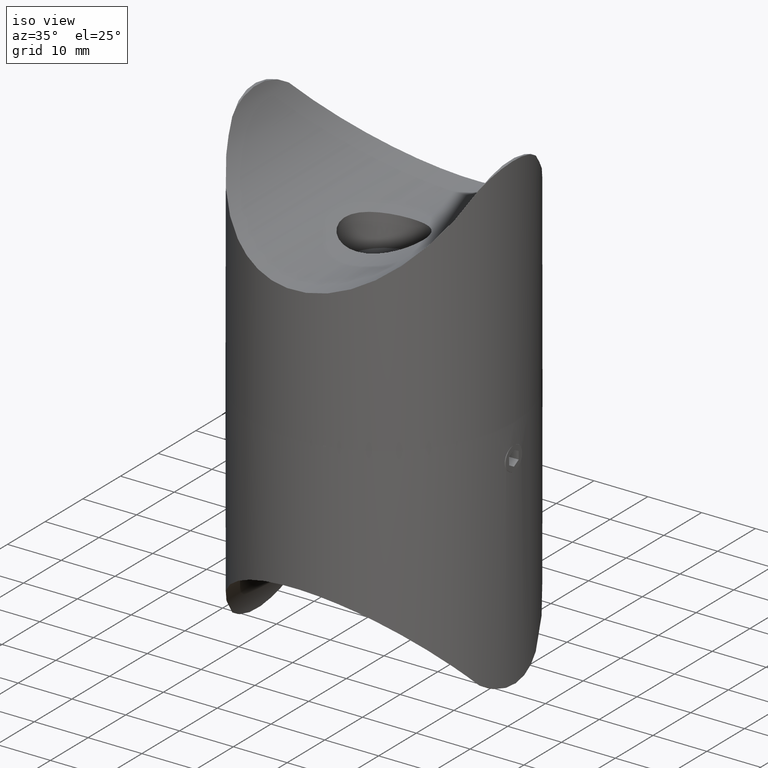
[diagram: clean part render]
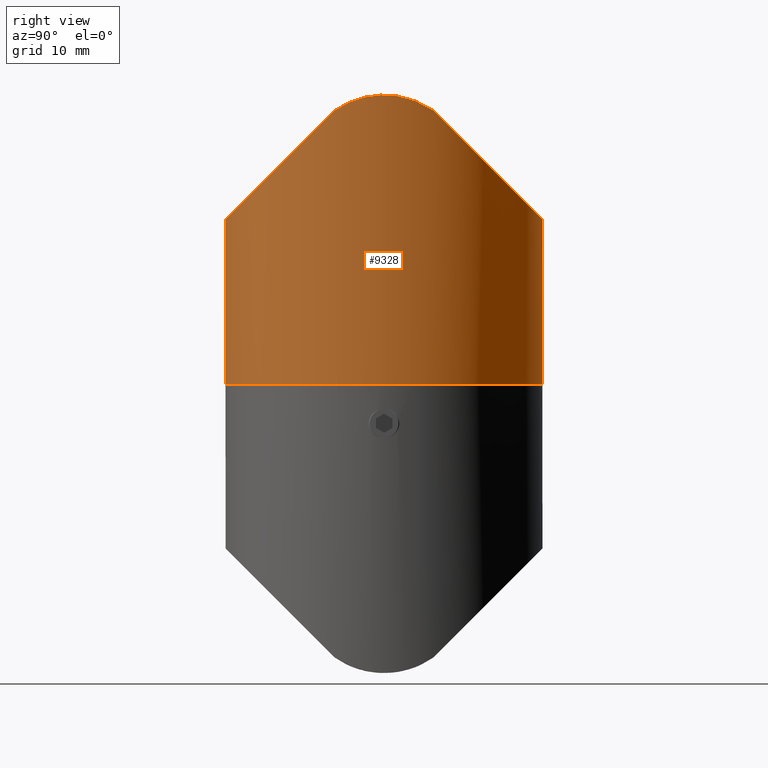
[diagram: tour spotlight — one face highlighted and labeled with its STEP entity id]
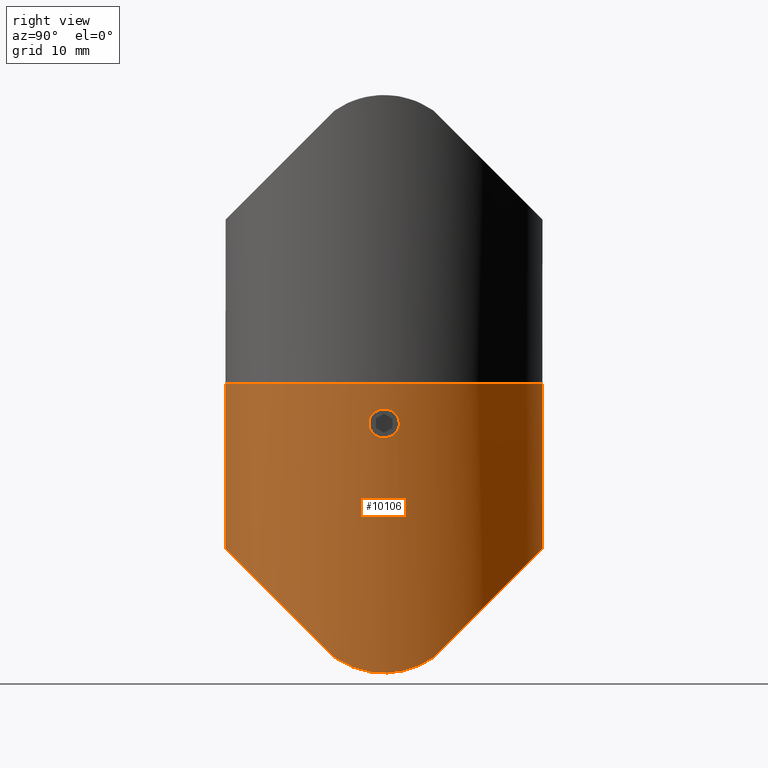
[diagram: tour spotlight — one face highlighted and labeled with its STEP entity id]
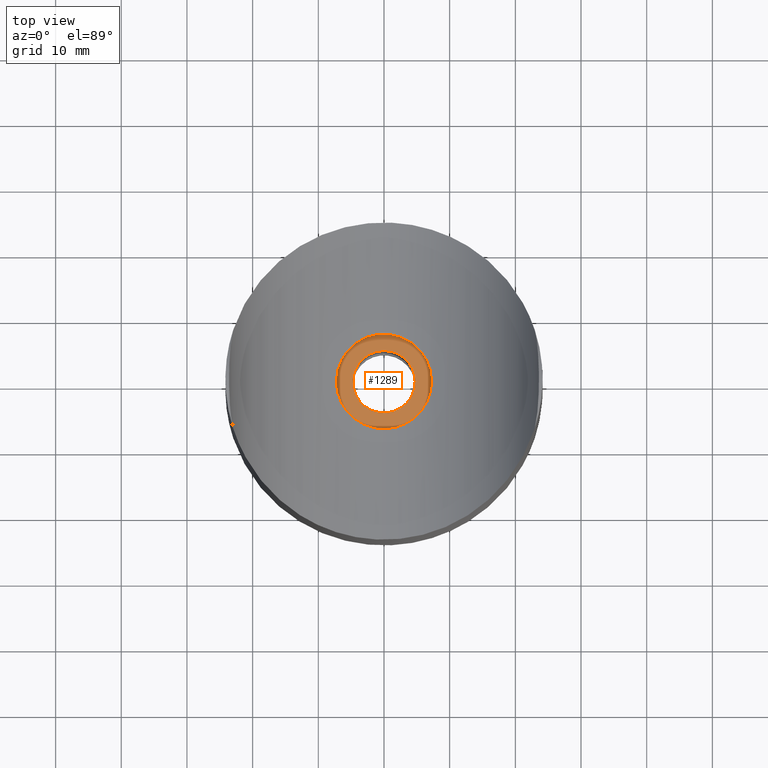
[diagram: tour spotlight — one face highlighted and labeled with its STEP entity id]
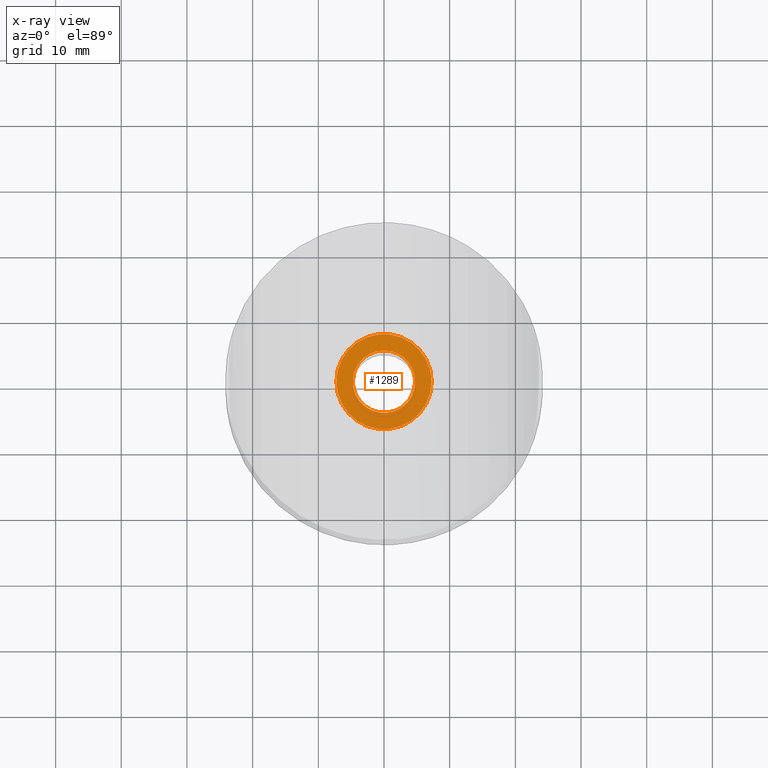
[diagram: x-ray of the same camera — body ghosted, this tour face saturated]
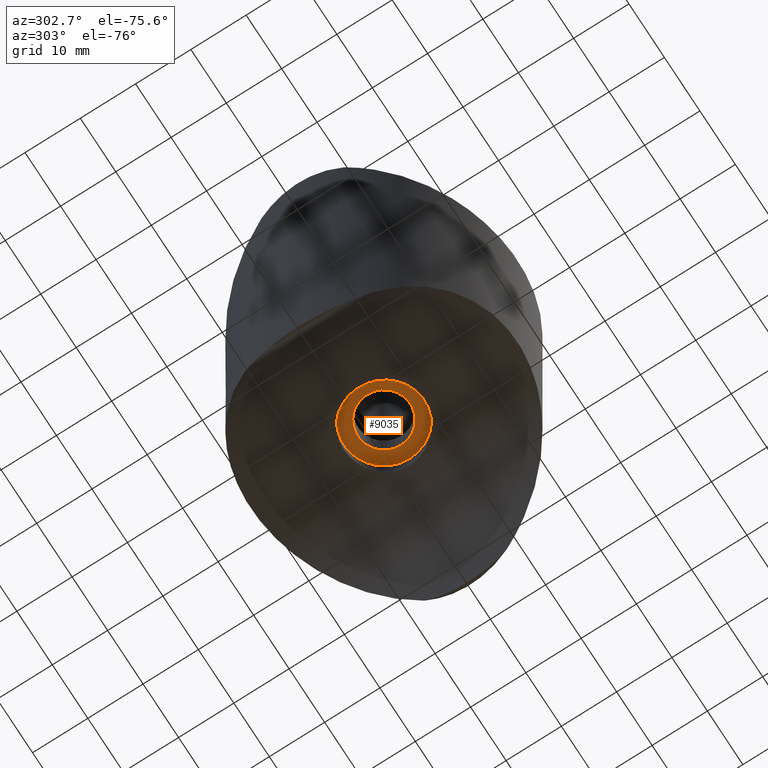
[diagram: tour spotlight — one face highlighted and labeled with its STEP entity id]
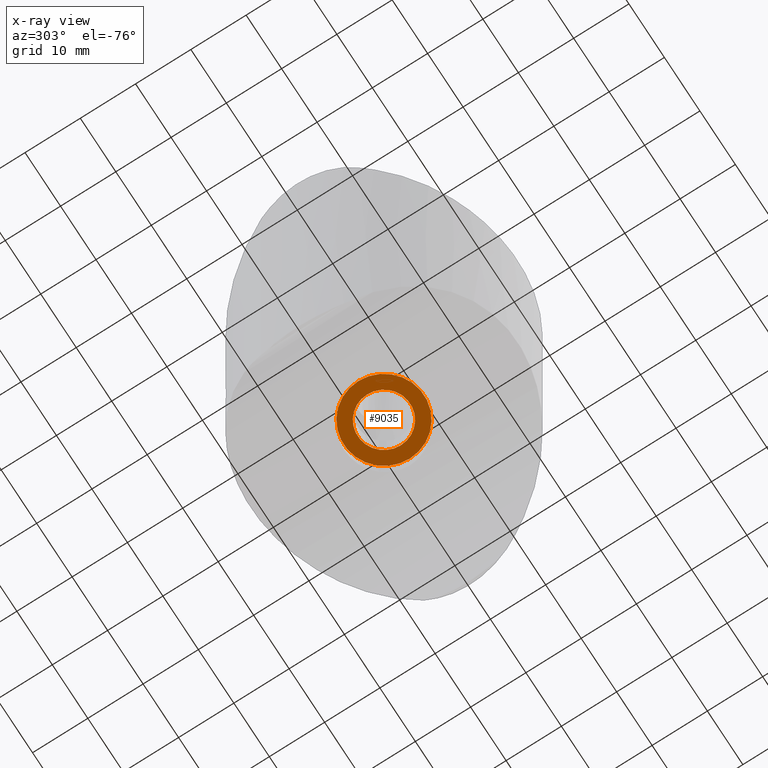
[diagram: x-ray of the same camera — body ghosted, this tour face saturated]
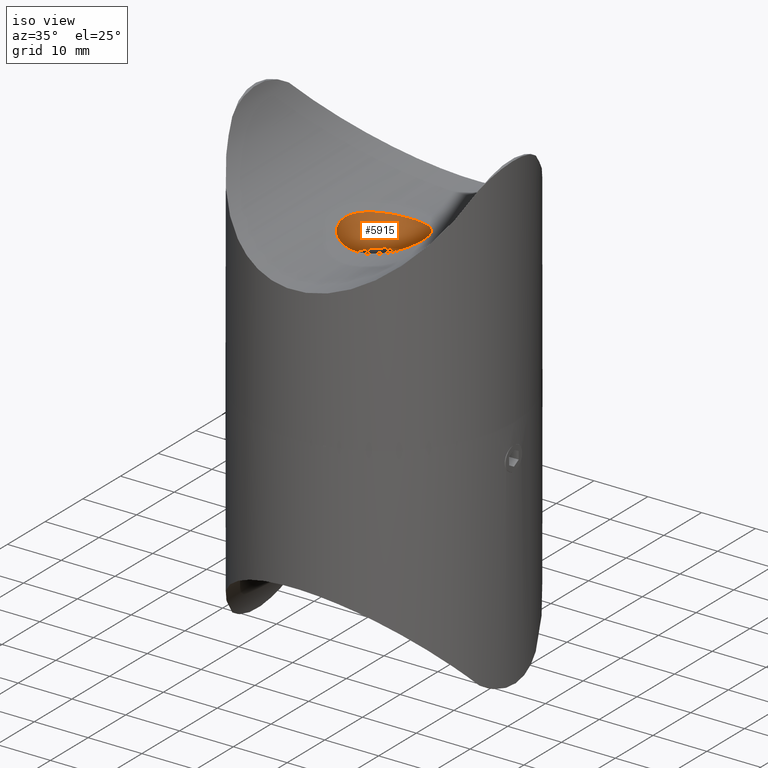
[diagram: tour spotlight — one face highlighted and labeled with its STEP entity id]
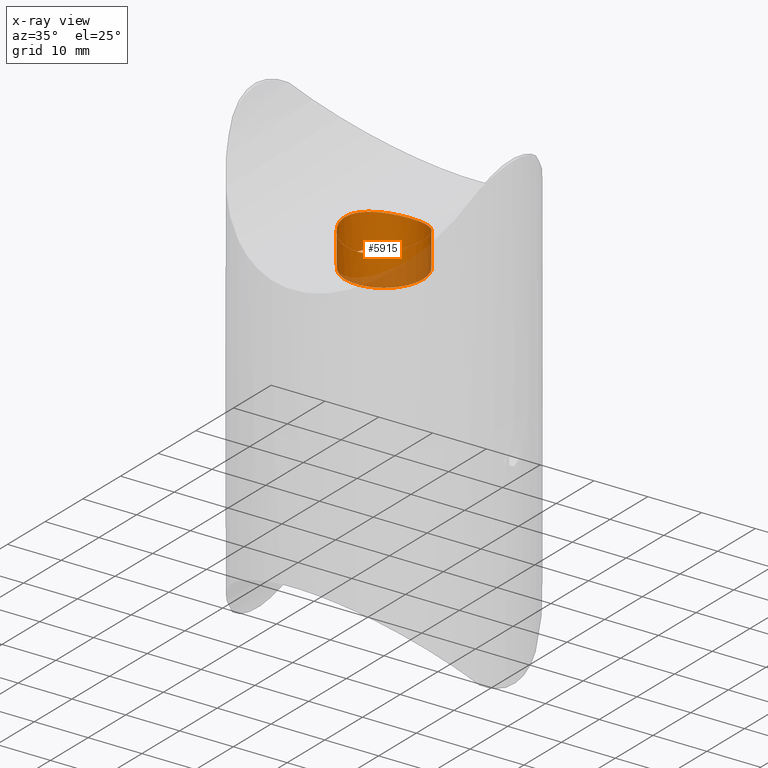
[diagram: x-ray of the same camera — body ghosted, this tour face saturated]
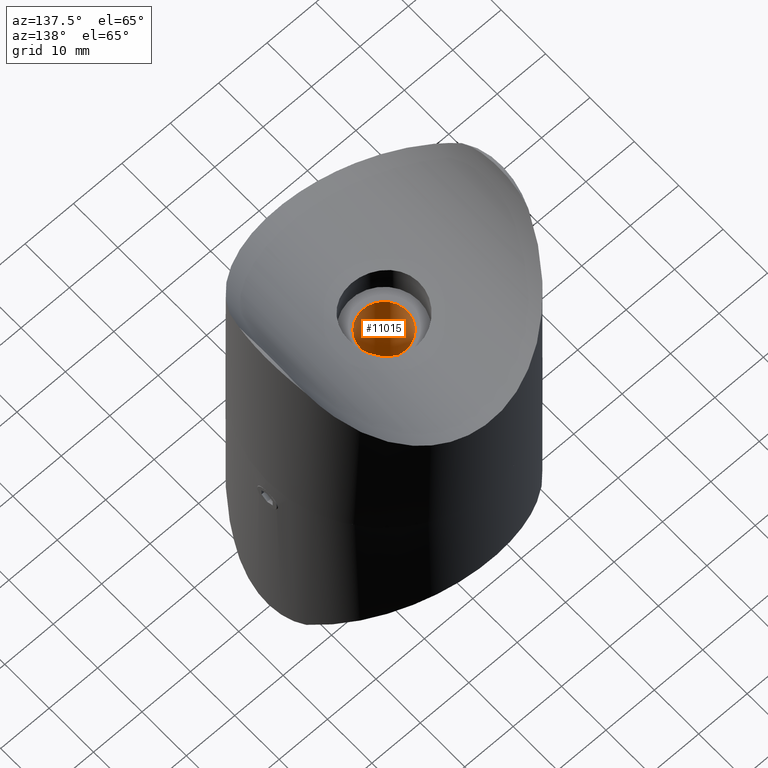
[diagram: tour spotlight — one face highlighted and labeled with its STEP entity id]
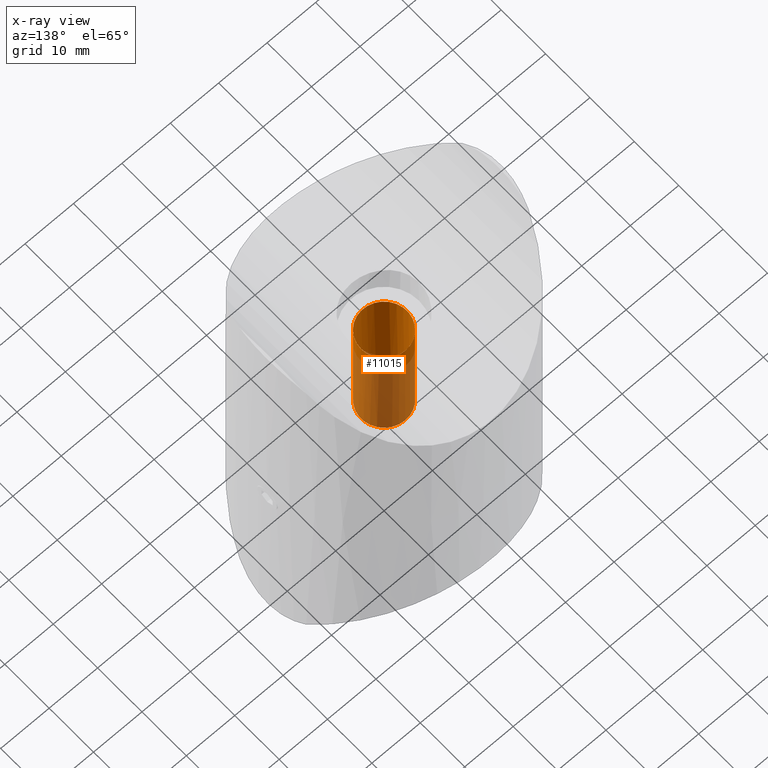
[diagram: x-ray of the same camera — body ghosted, this tour face saturated]
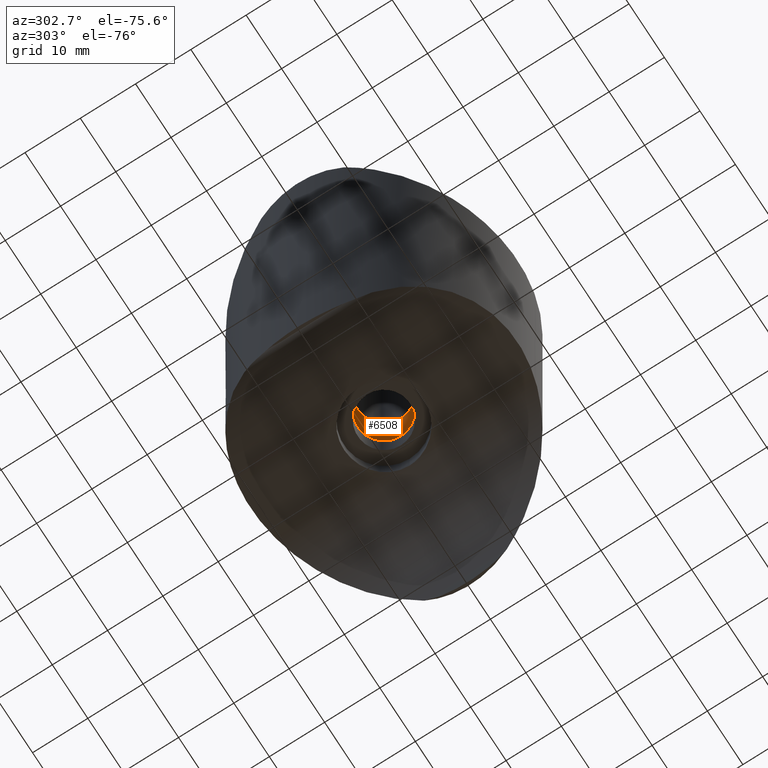
[diagram: tour spotlight — one face highlighted and labeled with its STEP entity id]
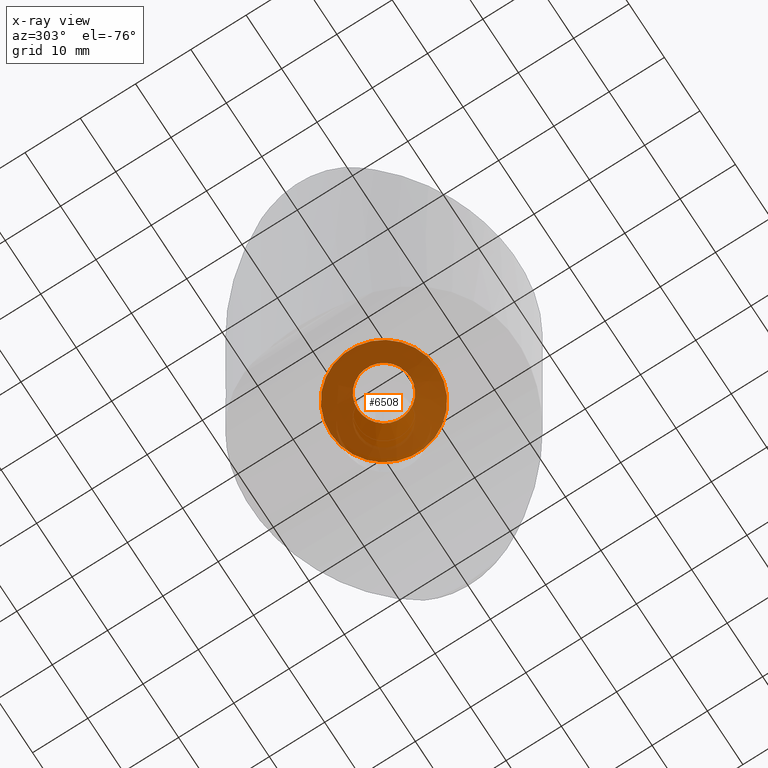
[diagram: x-ray of the same camera — body ghosted, this tour face saturated]
A machine part: a face-by-face anatomy tour. The part has 267 B-rep faces; the first image is the clean iso view, then the 7 largest visible faces are spotlighted one at a time (largest first), each with its STEP entity span.

Face 1 — right view, entity #9328. In plain terms, the highlighted cylindrical surface (bore or boss wall) has radius 24.15 mm, axis along (-0, -0, -1).
Definition (entity closure, byte-faithful):
#129 = CARTESIAN_POINT ( 'NONE',  ( 22.95588159927646643, 7.499999999999992895, 41.65000000000000568 ) ) ;
#328 = CARTESIAN_POINT ( 'NONE',  ( -23.60843002366777199, -5.248416552753503161, 42.98106121229555043 ) ) ;
#364 = CARTESIAN_POINT ( 'NONE',  ( -23.87483628833688698, -3.649626862566187846, 43.48756875683036327 ) ) ;
#449 = ORIENTED_EDGE ( 'NONE', *, *, #10274, .T. ) ;
#695 = CARTESIAN_POINT ( 'NONE',  ( 23.29549404017125269, -6.396219860817579317, 42.35740354395536400 ) ) ;
#720 = EDGE_CURVE ( 'NONE', #7595, #7595, #13955, .T. ) ;
#963 = CARTESIAN_POINT ( 'NONE',  ( 14.16052466468780224, -34.42068965517238865, 14.72931034482759927 ) ) ;
#1250 = VERTEX_POINT ( 'NONE', #13001 ) ;
#1365 = CARTESIAN_POINT ( 'NONE',  ( -22.95588159927646643, -7.500000000000001776, 41.64999999999999858 ) ) ;
#1406 = CARTESIAN_POINT ( 'NONE',  ( -24.01115486709185731, 2.669773711892143186, 43.74338684549248768 ) ) ;
#1558 = CARTESIAN_POINT ( 'NONE',  ( -14.16052466468779691, 34.42068965517240287, 14.72931034482758150 ) ) ;
#1792 = CARTESIAN_POINT ( 'NONE',  ( 22.95588159927646643, 7.499999999999992895, 41.65000000000000568 ) ) ;
#1985 = ORIENTED_EDGE ( 'NONE', *, *, #8057, .T. ) ;
#2208 = DIRECTION ( 'NONE',  ( -1.000000000000000000, 0.000000000000000000, 0.000000000000000000 ) ) ;
#2612 = CARTESIAN_POINT ( 'NONE',  ( -23.13216092701416926, 6.960447016540411980, 42.02492962726234538 ) ) ;
#2810 = CARTESIAN_POINT ( 'NONE',  ( 24.14972682618041233, 0.6872290583770844785, 43.99949805171757333 ) ) ;
#2946 = CARTESIAN_POINT ( 'NONE',  ( 24.12100697538241079, 1.355778284449713045, 43.94693398766127501 ) ) ;
#2979 = B_SPLINE_CURVE_WITH_KNOTS ( 'NONE', 3,
 ( #1365, #8102, #328, #364, #4799, #4700, #4894, #7011, #9137, #10273, #3626, #12369, #12458, #1406, #13487, #9091, #11319, #5854, #11414, #5901, #2612, #3737 ),
 .UNSPECIFIED., .F., .F.,
 ( 4, 2, 2, 2, 2, 2, 2, 2, 2, 2, 4 ),
 ( 1.589900327696125378E-17, 0.004028460611161912945, 0.005035575763952385327, 0.006042690916742857708, 0.008056921222323803339, 0.009064036375114277455, 0.01007115152790474810, 0.01208538183348569287, 0.01309249698627617045, 0.01409961213906664630, 0.01611384244464758933 ),
 .UNSPECIFIED. ) ;
#3058 = ORIENTED_EDGE ( 'NONE', *, *, #11090, .T. ) ;
#3085 = EDGE_CURVE ( 'NONE', #1250, #10240, #2979, .T. ) ;
#3086 = CARTESIAN_POINT ( 'NONE',  ( 0.000000000000000000, 0.000000000000000000, 46.20000000000000284 ) ) ;
#3388 = AXIS2_PLACEMENT_3D ( 'NONE', #3989, #3953, #8280 ) ;
#3415 = FACE_OUTER_BOUND ( 'NONE', #13305, .T. ) ;
#3626 = CARTESIAN_POINT ( 'NONE',  ( -24.14304218363578869, 0.6704689350011597826, 43.98722882192571859 ) ) ;
#3737 = CARTESIAN_POINT ( 'NONE',  ( -22.95588159927646998, 7.499999999999992895, 41.65000000000001990 ) ) ;
#3926 = CARTESIAN_POINT ( 'NONE',  ( 24.15013368432767749, -0.3291130786761600757, 44.00024564073856936 ) ) ;
#3953 = DIRECTION ( 'NONE',  ( 0.000000000000000000, 0.000000000000000000, 1.000000000000000000 ) ) ;
#3989 = CARTESIAN_POINT ( 'NONE',  ( 0.000000000000000000, 0.000000000000000000, 0.000000000000000000 ) ) ;
#4066 = CARTESIAN_POINT ( 'NONE',  ( 23.87483628833688698, 3.649626862566199836, 43.48756875683037748 ) ) ;
#4236 =( BOUNDED_CURVE ( )  B_SPLINE_CURVE ( 3, ( #7096, #1558, #8150, #9320 ),
 .UNSPECIFIED., .F., .T. ) 
 B_SPLINE_CURVE_WITH_KNOTS ( ( 4, 4 ),
 ( 5.028170040954742070, 7.538200573404430394 ),
 .UNSPECIFIED. ) 
 CURVE ( )  GEOMETRIC_REPRESENTATION_ITEM ( )  RATIONAL_B_SPLINE_CURVE ( ( 1.000000000000000000, 0.5403726708074531038, 0.5403726708074531038, 1.000000000000000000 ) ) 
 REPRESENTATION_ITEM ( '' )  );
#4246 = CARTESIAN_POINT ( 'NONE',  ( 22.95588159927646998, -7.500000000000002665, 41.65000000000001990 ) ) ;
#4700 = CARTESIAN_POINT ( 'NONE',  ( -24.00379793422347063, -2.673558122638984624, 43.72954736107895002 ) ) ;
#4799 = CARTESIAN_POINT ( 'NONE',  ( -23.92227335708609459, -3.324915898336147979, 43.57688006442134565 ) ) ;
#4894 = CARTESIAN_POINT ( 'NONE',  ( -24.03808871670724301, -2.345728866145817548, 43.79328820036366210 ) ) ;
#5084 = CARTESIAN_POINT ( 'NONE',  ( 23.77023840501146523, -4.278214606744533910, 43.28872020691715505 ) ) ;
#5142 = B_SPLINE_CURVE_WITH_KNOTS ( 'NONE', 3,
 ( #1792, #10649, #6326, #4066, #13990, #6235, #9421, #2946, #2810, #3926, #11595, #12703, #6147, #13807, #7237, #5084, #6199, #7279, #11681, #695, #5178, #9506 ),
 .UNSPECIFIED., .F., .F.,
 ( 4, 2, 2, 2, 2, 2, 2, 2, 2, 2, 4 ),
 ( 0.000000000000000000, 0.004028460611161900802, 0.005035575763952374051, 0.006042690916742847300, 0.008056921222323796400, 0.009064036375114270516, 0.01007115152790474637, 0.01208538183348569633, 0.01309249698627617045, 0.01409961213906664457, 0.01611384244464759974 ),
 .UNSPECIFIED. ) ;
#5178 = CARTESIAN_POINT ( 'NONE',  ( 23.13216092701418347, -6.960447016540407539, 42.02492962726235959 ) ) ;
#5854 = CARTESIAN_POINT ( 'NONE',  ( -23.58335383790703688, 5.210264715922725109, 42.92770681282802769 ) ) ;
#5901 = CARTESIAN_POINT ( 'NONE',  ( -23.29549404017126335, 6.396219860817576652, 42.35740354395535689 ) ) ;
#6147 = CARTESIAN_POINT ( 'NONE',  ( 24.09396309027846428, -1.677387860735771508, 43.89681893121146317 ) ) ;
#6199 = CARTESIAN_POINT ( 'NONE',  ( 23.71105322784125491, -4.594278123970354066, 43.17533542899762011 ) ) ;
#6235 = CARTESIAN_POINT ( 'NONE',  ( 24.00379793422345998, 2.673558122638993506, 43.72954736107893581 ) ) ;
#6326 = CARTESIAN_POINT ( 'NONE',  ( 23.60843002366776844, 5.248416552753517372, 42.98106121229555043 ) ) ;
#6529 = CARTESIAN_POINT ( 'NONE',  ( 24.14999999999999858, 0.000000000000000000, 0.000000000000000000 ) ) ;
#6591 = CARTESIAN_POINT ( 'NONE',  ( -22.95588159927646643, -7.500000000000001776, 41.64999999999999858 ) ) ;
#7011 = CARTESIAN_POINT ( 'NONE',  ( -24.12100697538239658, -1.355778284449705051, 43.94693398766126080 ) ) ;
#7096 = CARTESIAN_POINT ( 'NONE',  ( -22.95588159927646998, 7.499999999999992895, 41.65000000000001990 ) ) ;
#7237 = CARTESIAN_POINT ( 'NONE',  ( 23.92948070355512868, -3.319920099635118138, 43.59142259779617490 ) ) ;
#7279 = CARTESIAN_POINT ( 'NONE',  ( 23.58335383790703332, -5.210264715922724221, 42.92770681282802769 ) ) ;
#7595 = VERTEX_POINT ( 'NONE', #6529 ) ;
#7837 = CARTESIAN_POINT ( 'NONE',  ( 22.95588159927646998, -7.500000000000002665, 41.65000000000001990 ) ) ;
#7916 = CARTESIAN_POINT ( 'NONE',  ( -22.95588159927646998, 7.499999999999992895, 41.65000000000001990 ) ) ;
#7923 = EDGE_LOOP ( 'NONE', ( #9500 ) ) ;
#8057 = EDGE_CURVE ( 'NONE', #14016, #1250, #14258, .T. ) ;
#8102 = CARTESIAN_POINT ( 'NONE',  ( -23.30833638319468903, -6.421211961503320076, 42.39963832944672362 ) ) ;
#8150 = CARTESIAN_POINT ( 'NONE',  ( 14.16052466468779159, 34.42068965517240997, 14.72931034482758150 ) ) ;
#8280 = DIRECTION ( 'NONE',  ( 1.000000000000000000, 0.000000000000000000, 0.000000000000000000 ) ) ;
#9019 = VERTEX_POINT ( 'NONE', #129 ) ;
#9091 = CARTESIAN_POINT ( 'NONE',  ( -23.77023840501146523, 4.278214606744530357, 43.28872020691714084 ) ) ;
#9137 = CARTESIAN_POINT ( 'NONE',  ( -24.14972682618040523, -0.6872290583770785943, 43.99949805171756623 ) ) ;
#9320 = CARTESIAN_POINT ( 'NONE',  ( 22.95588159927646643, 7.499999999999992895, 41.65000000000000568 ) ) ;
#9328 = ADVANCED_FACE ( 'NONE', ( #3415, #13211 ), #14074, .T. ) ;
#9421 = CARTESIAN_POINT ( 'NONE',  ( 24.03808871670724656, 2.345728866145826430, 43.79328820036364789 ) ) ;
#9500 = ORIENTED_EDGE ( 'NONE', *, *, #720, .T. ) ;
#9506 = CARTESIAN_POINT ( 'NONE',  ( 22.95588159927646998, -7.500000000000002665, 41.65000000000001990 ) ) ;
#10240 = VERTEX_POINT ( 'NONE', #7916 ) ;
#10273 = CARTESIAN_POINT ( 'NONE',  ( -24.15013368432767393, 0.3291130786761634064, 44.00024564073856226 ) ) ;
#10274 = EDGE_CURVE ( 'NONE', #9019, #14016, #5142, .T. ) ;
#10649 = CARTESIAN_POINT ( 'NONE',  ( 23.30833638319467838, 6.421211961503321852, 42.39963832944672362 ) ) ;
#10952 = CARTESIAN_POINT ( 'NONE',  ( -14.16052466468776494, -34.42068965517241708, 14.72931034482758683 ) ) ;
#11090 = EDGE_CURVE ( 'NONE', #10240, #9019, #4236, .T. ) ;
#11319 = CARTESIAN_POINT ( 'NONE',  ( -23.71105322784124425, 4.594278123970356731, 43.17533542899761301 ) ) ;
#11414 = CARTESIAN_POINT ( 'NONE',  ( -23.51462238132191729, 5.511563030096535698, 42.79305348516378160 ) ) ;
#11595 = CARTESIAN_POINT ( 'NONE',  ( 24.14304218363578514, -0.6704689350011536764, 43.98722882192571859 ) ) ;
#11681 = CARTESIAN_POINT ( 'NONE',  ( 23.51462238132192795, -5.511563030096541027, 42.79305348516378871 ) ) ;
#12056 = DIRECTION ( 'NONE',  ( -0.000000000000000000, -0.000000000000000000, -1.000000000000000000 ) ) ;
#12353 = AXIS2_PLACEMENT_3D ( 'NONE', #3086, #12056, #2208 ) ;
#12369 = CARTESIAN_POINT ( 'NONE',  ( -24.11494201700114459, 1.343720949561749922, 43.93548845721513629 ) ) ;
#12458 = CARTESIAN_POINT ( 'NONE',  ( -24.09396309027845717, 1.677387860735773728, 43.89681893121144896 ) ) ;
#12703 = CARTESIAN_POINT ( 'NONE',  ( 24.11494201700115170, -1.343720949561744149, 43.93548845721512919 ) ) ;
#13001 = CARTESIAN_POINT ( 'NONE',  ( -22.95588159927646643, -7.500000000000001776, 41.64999999999999858 ) ) ;
#13007 = ORIENTED_EDGE ( 'NONE', *, *, #3085, .T. ) ;
#13211 = FACE_OUTER_BOUND ( 'NONE', #7923, .T. ) ;
#13305 = EDGE_LOOP ( 'NONE', ( #1985, #13007, #3058, #449 ) ) ;
#13487 = CARTESIAN_POINT ( 'NONE',  ( -23.92948070355512513, 3.319920099635118138, 43.59142259779617490 ) ) ;
#13807 = CARTESIAN_POINT ( 'NONE',  ( 24.01115486709185376, -2.669773711892142298, 43.74338684549247347 ) ) ;
#13955 = CIRCLE ( 'NONE', #3388, 24.14999999999999858 ) ;
#13990 = CARTESIAN_POINT ( 'NONE',  ( 23.92227335708609104, 3.324915898336157749, 43.57688006442133855 ) ) ;
#14016 = VERTEX_POINT ( 'NONE', #7837 ) ;
#14074 = CYLINDRICAL_SURFACE ( 'NONE', #12353, 24.14999999999999858 ) ;
#14258 =( BOUNDED_CURVE ( )  B_SPLINE_CURVE ( 3, ( #4246, #963, #10952, #6591 ),
 .UNSPECIFIED., .F., .F. ) 
 B_SPLINE_CURVE_WITH_KNOTS ( ( 4, 4 ),
 ( 5.028170040954742070, 7.538200573404429505 ),
 .UNSPECIFIED. ) 
 CURVE ( )  GEOMETRIC_REPRESENTATION_ITEM ( )  RATIONAL_B_SPLINE_CURVE ( ( 1.000000000000000000, 0.5403726708074534368, 0.5403726708074534368, 1.000000000000000000 ) ) 
 REPRESENTATION_ITEM ( '' )  );

Face 2 — right view, entity #10106. In plain terms, the highlighted cylindrical surface (bore or boss wall) has radius 24.15 mm, axis along (0, 0, 1).
Definition (entity closure, byte-faithful):
#28 = CARTESIAN_POINT ( 'NONE',  ( 23.92227335708609459, 3.324915898336159081, 43.57688006442130302 ) ) ;
#78 = CARTESIAN_POINT ( 'NONE',  ( -23.29549404017124559, 6.396219860817595304, 42.35740354395529295 ) ) ;
#82 = CARTESIAN_POINT ( 'NONE',  ( 24.11631942673483664, 1.289702955962162223, 7.679770836504631326 ) ) ;
#130 = CARTESIAN_POINT ( 'NONE',  ( 23.92948070355512513, -3.319920099635129684, 43.59142259779612516 ) ) ;
#217 = CARTESIAN_POINT ( 'NONE',  ( 24.11019841228596050, 1.389328079779685865, 4.419327374982760404 ) ) ;
#330 = CARTESIAN_POINT ( 'NONE',  ( 22.95588159927646643, 7.499999999999992895, 41.64999999999992042 ) ) ;
#430 =( BOUNDED_CURVE ( )  B_SPLINE_CURVE ( 3, ( #9664, #899, #3066, #3152 ),
 .UNSPECIFIED., .F., .T. ) 
 B_SPLINE_CURVE_WITH_KNOTS ( ( 4, 4 ),
 ( 5.028170040954742959, 7.538200573404429505 ),
 .UNSPECIFIED. ) 
 CURVE ( )  GEOMETRIC_REPRESENTATION_ITEM ( )  RATIONAL_B_SPLINE_CURVE ( ( 1.000000000000000000, 0.5403726708074536589, 0.5403726708074536589, 1.000000000000000000 ) ) 
 REPRESENTATION_ITEM ( '' )  );
#899 = CARTESIAN_POINT ( 'NONE',  ( -14.16052466468775606, 34.42068965517238865, 14.72931034482758328 ) ) ;
#1024 = CARTESIAN_POINT ( 'NONE',  ( -23.92948070355512513, 3.319920099635129684, 43.59142259779613227 ) ) ;
#1028 = CARTESIAN_POINT ( 'NONE',  ( 24.12100697538240013, 1.355778284449711268, 43.94693398766121817 ) ) ;
#1032 = CARTESIAN_POINT ( 'NONE',  ( 0.000000000000000000, 0.000000000000000000, 47.99999999999991473 ) ) ;
#1056 = CARTESIAN_POINT ( 'NONE',  ( -22.95588159927646643, -7.500000000000004441, 41.64999999999990621 ) ) ;
#1071 = CARTESIAN_POINT ( 'NONE',  ( 22.95588159927646643, 7.499999999999992895, 41.64999999999992042 ) ) ;
#1121 = CARTESIAN_POINT ( 'NONE',  ( 24.00379793422345998, 2.673558122638994838, 43.72954736107889318 ) ) ;
#1169 = CARTESIAN_POINT ( 'NONE',  ( 24.14999999999999858, 0.000000000000000000, 0.000000000000000000 ) ) ;
#1172 = CARTESIAN_POINT ( 'NONE',  ( 24.08131181777412522, 1.821750677468991331, 7.053594443826981752 ) ) ;
#1212 = CARTESIAN_POINT ( 'NONE',  ( 24.05853541000170281, -2.099850934707511385, 5.724811917468316302 ) ) ;
#1213 = CARTESIAN_POINT ( 'NONE',  ( 23.77023840501146879, -4.278214606744546344, 43.28872020691709821 ) ) ;
#1316 = CARTESIAN_POINT ( 'NONE',  ( 24.12723884389627216, 1.054519917222349834, 4.178730270702706306 ) ) ;
#1330 = CIRCLE ( 'NONE', #5917, 24.14999999999999858 ) ;
#1839 = CARTESIAN_POINT ( 'NONE',  ( -23.60843002366776844, -5.248416552753521813, 42.98106121229551491 ) ) ;
#1884 = CARTESIAN_POINT ( 'NONE',  ( -24.15013368432767749, 0.3291130786761629068, 44.00024564073852673 ) ) ;
#1925 = VERTEX_POINT ( 'NONE', #330 ) ;
#1994 = EDGE_LOOP ( 'NONE', ( #9265 ) ) ;
#2126 = CARTESIAN_POINT ( 'NONE',  ( 23.13216092701418702, -6.960447016540408427, 42.02492962726225301 ) ) ;
#2178 = CARTESIAN_POINT ( 'NONE',  ( 24.09236680213091830, -1.678687350052096017, 4.708877320650235454 ) ) ;
#2225 = CARTESIAN_POINT ( 'NONE',  ( 24.08127045059017490, -1.822283239216968331, 7.052613848374164718 ) ) ;
#2262 = EDGE_CURVE ( 'NONE', #1925, #5676, #9869, .T. ) ;
#2273 = CARTESIAN_POINT ( 'NONE',  ( 24.06776837372744637, 1.991941591665251643, 6.679036239075793802 ) ) ;
#2328 = CARTESIAN_POINT ( 'NONE',  ( 24.06430535746709509, -2.032838156000704277, 6.544452294418051430 ) ) ;
#2424 = VERTEX_POINT ( 'NONE', #1169 ) ;
#2559 = CARTESIAN_POINT ( 'NONE',  ( 24.11612892559242738, 1.283741457786695239, 4.332353888790264840 ) ) ;
#3066 = CARTESIAN_POINT ( 'NONE',  ( 14.16052466468774718, 34.42068965517238865, 14.72931034482759038 ) ) ;
#3152 = CARTESIAN_POINT ( 'NONE',  ( 22.95588159927646643, 7.499999999999992895, 41.64999999999992042 ) ) ;
#3284 = CARTESIAN_POINT ( 'NONE',  ( -22.95588159927646643, 7.499999999999992895, 41.64999999999992042 ) ) ;
#3338 = CARTESIAN_POINT ( 'NONE',  ( 24.12825461081962075, 1.055369098489972179, 7.836036569338631352 ) ) ;
#3395 = CARTESIAN_POINT ( 'NONE',  ( 24.05974397684662947, 2.086131318628857478, 6.277113442306162305 ) ) ;
#3437 = CARTESIAN_POINT ( 'NONE',  ( 23.71105322784124780, -4.594278123970381600, 43.17533542899758459 ) ) ;
#3483 = CARTESIAN_POINT ( 'NONE',  ( 24.07614408348488411, -1.888006798825872856, 6.929713021400002226 ) ) ;
#3519 = VERTEX_POINT ( 'NONE', #8809 ) ;
#3839 = EDGE_CURVE ( 'NONE', #11816, #3519, #7313, .T. ) ;
#3899 = AXIS2_PLACEMENT_3D ( 'NONE', #1032, #7675, #8807 ) ;
#4021 = CARTESIAN_POINT ( 'NONE',  ( -22.95588159927646643, -7.500000000000004441, 41.64999999999990621 ) ) ;
#4073 = CARTESIAN_POINT ( 'NONE',  ( -24.00379793422347063, -2.673558122638991730, 43.72954736107889318 ) ) ;
#4418 = CARTESIAN_POINT ( 'NONE',  ( 24.11631184355479007, -1.280255923900488479, 4.329738872629966373 ) ) ;
#4419 = CARTESIAN_POINT ( 'NONE',  ( 23.30833638319467838, 6.421211961503322740, 42.39963832944663125 ) ) ;
#4463 = CARTESIAN_POINT ( 'NONE',  ( 24.15000866738045104, 0.2733871816831951462, 8.100099674881718670 ) ) ;
#4464 = CARTESIAN_POINT ( 'NONE',  ( 24.15013368432767749, -0.3291130786761609084, 44.00024564073853384 ) ) ;
#4499 = EDGE_CURVE ( 'NONE', #2424, #2424, #1330, .T. ) ;
#4553 = CARTESIAN_POINT ( 'NONE',  ( 24.14083972322663740, -0.6771559945061484953, 4.007412888899073877 ) ) ;
#4555 = CARTESIAN_POINT ( 'NONE',  ( 23.58335383790701911, -5.210264715922747314, 42.92770681282797085 ) ) ;
#4605 = CARTESIAN_POINT ( 'NONE',  ( 24.09228709223852860, -1.670330920373485517, 7.280119812425549952 ) ) ;
#4645 = CARTESIAN_POINT ( 'NONE',  ( 24.09221030867760049, 1.671441995005958692, 4.721292065617217482 ) ) ;
#4789 = CARTESIAN_POINT ( 'NONE',  ( 24.05851074223536301, 2.100133539559030815, 5.863366245386184339 ) ) ;
#5185 = CARTESIAN_POINT ( 'NONE',  ( -24.03808871670725011, -2.345728866145822877, 43.79328820036361236 ) ) ;
#5519 = CARTESIAN_POINT ( 'NONE',  ( -23.13216092701417992, 6.960447016540414644, 42.02492962726225301 ) ) ;
#5523 = CARTESIAN_POINT ( 'NONE',  ( 24.14419690580835720, -0.5462364450166505847, 8.032354001020314271 ) ) ;
#5524 = CARTESIAN_POINT ( 'NONE',  ( 23.60843002366776133, 5.248416552753526254, 42.98106121229550780 ) ) ;
#5561 = CARTESIAN_POINT ( 'NONE',  ( -24.11494201700115525, 1.343720949561759026, 43.93548845721508656 ) ) ;
#5566 = CARTESIAN_POINT ( 'NONE',  ( 24.09396309027846073, -1.677387860735783942, 43.89681893121142053 ) ) ;
#5663 = CARTESIAN_POINT ( 'NONE',  ( 24.13236635817197140, -0.9314379949207342024, 4.112841581149271342 ) ) ;
#5676 = VERTEX_POINT ( 'NONE', #9301 ) ;
#5731 =( BOUNDED_CURVE ( )  B_SPLINE_CURVE ( 3, ( #13941, #13034, #7653, #1056 ),
 .UNSPECIFIED., .F., .T. ) 
 B_SPLINE_CURVE_WITH_KNOTS ( ( 4, 4 ),
 ( 5.028170040954742959, 7.538200573404429505 ),
 .UNSPECIFIED. ) 
 CURVE ( )  GEOMETRIC_REPRESENTATION_ITEM ( )  RATIONAL_B_SPLINE_CURVE ( ( 1.000000000000000000, 0.5403726708074536589, 0.5403726708074536589, 1.000000000000000000 ) ) 
 REPRESENTATION_ITEM ( '' )  );
#5758 = CARTESIAN_POINT ( 'NONE',  ( 24.06425098037636090, 2.033478736330425640, 5.458066115904379068 ) ) ;
#5890 = CARTESIAN_POINT ( 'NONE',  ( 24.06766021552983403, 1.993243519415751841, 5.324760817233135768 ) ) ;
#5917 = AXIS2_PLACEMENT_3D ( 'NONE', #12188, #13397, #7830 ) ;
#6285 = CARTESIAN_POINT ( 'NONE',  ( -24.12100697538241079, -1.355778284449708382, 43.94693398766123948 ) ) ;
#6532 = CARTESIAN_POINT ( 'NONE',  ( 23.29549404017124914, -6.396219860817600633, 42.35740354395530005 ) ) ;
#6569 = CARTESIAN_POINT ( 'NONE',  ( 24.12724725646987523, -1.054224601317336196, 7.821349766844095441 ) ) ;
#6673 = CARTESIAN_POINT ( 'NONE',  ( 24.14084058484262485, -0.6771316269856401115, 7.992597936981089113 ) ) ;
#6674 = CARTESIAN_POINT ( 'NONE',  ( 24.14304218363578869, -0.6704689350011675542, 43.98722882192567596 ) ) ;
#6717 = CARTESIAN_POINT ( 'NONE',  ( -24.14304218363578158, 0.6704689350011683313, 43.98722882192565464 ) ) ;
#6822 = CARTESIAN_POINT ( 'NONE',  ( 24.07614608703932291, 1.887982408136293477, 5.070220398048847166 ) ) ;
#6907 = CARTESIAN_POINT ( 'NONE',  ( 24.05853422731386360, 2.099864484056626956, 6.140708263716815551 ) ) ;
#7245 = CARTESIAN_POINT ( 'NONE',  ( -23.87483628833687632, -3.649626862566202945, 43.48756875683032774 ) ) ;
#7306 = B_SPLINE_CURVE_WITH_KNOTS ( 'NONE', 3,
 ( #11127, #10979, #7870, #8991, #4553, #5663, #12219, #4418, #14252, #2178, #12075, #10083, #1212, #8947, #9941, #2328, #10033, #3483, #2225, #4605, #12265, #13143, #12179, #6569, #7670, #6673, #5523, #13187, #7721, #4463, #13235, #3338, #82, #11024, #7763, #1172, #8897, #2273, #9986, #3395, #6907, #4789, #11256, #5758, #5890, #6822, #11209, #4645, #13386, #217, #2559, #1316, #11401, #9169, #13526, #8041 ),
 .UNSPECIFIED., .T., .F.,
 ( 4, 2, 2, 2, 2, 2, 2, 2, 2, 2, 2, 2, 2, 2, 2, 2, 2, 2, 2, 2, 2, 2, 2, 2, 2, 2, 2, 4 ),
 ( 0.000000000000000000, 0.0004104933829058750859, 0.0008209867658117501717, 0.001231480148717625095, 0.001641973531623500343, 0.002462960297435251057, 0.003283947063247001988, 0.003694440446152878754, 0.004104933829058754653, 0.004515427211964631420, 0.004925920594870508186, 0.005336413977776384952, 0.005746907360682259117, 0.006157400743588134148, 0.006567894126494010047, 0.007388880892305760111, 0.008209867658117509306, 0.008620361041023384338, 0.009030854423929259370, 0.009441347806835134401, 0.009851841189741011168, 0.01026233457264688620, 0.01067282795555276123, 0.01108332133845863626, 0.01149381472136450956, 0.01190430810427038459, 0.01231480148717625962, 0.01313578825298800795 ),
 .UNSPECIFIED. ) ;
#7313 = B_SPLINE_CURVE_WITH_KNOTS ( 'NONE', 3,
 ( #4021, #7336, #1839, #7245, #9562, #4073, #5185, #6285, #13947, #1884, #6717, #5561, #7717, #9980, #1024, #12071, #9887, #8843, #11068, #78, #5519, #3284 ),
 .UNSPECIFIED., .F., .F.,
 ( 4, 2, 2, 2, 2, 2, 2, 2, 2, 2, 4 ),
 ( 1.440969542111313559E-17, 0.004028460611161915547, 0.005035575763952388796, 0.006042690916742862912, 0.008056921222323808543, 0.009064036375114280925, 0.01007115152790475504, 0.01208538183348570327, 0.01309249698627618086, 0.01409961213906665844, 0.01611384244464760321 ),
 .UNSPECIFIED. ) ;
#7336 = CARTESIAN_POINT ( 'NONE',  ( -23.30833638319468193, -6.421211961503321852, 42.39963832944661704 ) ) ;
#7349 = ORIENTED_EDGE ( 'NONE', *, *, #11292, .T. ) ;
#7653 = CARTESIAN_POINT ( 'NONE',  ( -14.16052466468774718, -34.42068965517239576, 14.72931034482759038 ) ) ;
#7670 = CARTESIAN_POINT ( 'NONE',  ( 24.13236486954442128, -0.9314811786754894074, 7.887139791456592164 ) ) ;
#7675 = DIRECTION ( 'NONE',  ( 0.000000000000000000, 0.000000000000000000, -1.000000000000000000 ) ) ;
#7717 = CARTESIAN_POINT ( 'NONE',  ( -24.09396309027845717, 1.677387860735784164, 43.89681893121142053 ) ) ;
#7721 = CARTESIAN_POINT ( 'NONE',  ( 24.14999564815527577, -0.1378404530454160615, 8.099949953782452639 ) ) ;
#7763 = CARTESIAN_POINT ( 'NONE',  ( 24.09237189134056933, 1.669122837022318784, 7.281743241781430953 ) ) ;
#7764 = CARTESIAN_POINT ( 'NONE',  ( 23.87483628833689409, 3.649626862566211383, 43.48756875683034195 ) ) ;
#7830 = DIRECTION ( 'NONE',  ( 1.000000000000000000, 0.000000000000000000, 0.000000000000000000 ) ) ;
#7870 = CARTESIAN_POINT ( 'NONE',  ( 24.14880423732462944, -0.2752799587736628473, 3.913626766301641080 ) ) ;
#8008 = FACE_OUTER_BOUND ( 'NONE', #13161, .T. ) ;
#8041 = CARTESIAN_POINT ( 'NONE',  ( 24.15000000000000213, 1.355252715606880543E-17, 3.900000000000003908 ) ) ;
#8763 = CARTESIAN_POINT ( 'NONE',  ( 24.03808871670724656, 2.345728866145825098, 43.79328820036360526 ) ) ;
#8804 = CARTESIAN_POINT ( 'NONE',  ( 24.14972682618040167, 0.6872290583770850336, 43.99949805171753070 ) ) ;
#8807 = DIRECTION ( 'NONE',  ( -1.000000000000000000, 0.000000000000000000, 0.000000000000000000 ) ) ;
#8809 = CARTESIAN_POINT ( 'NONE',  ( -22.95588159927646643, 7.499999999999992895, 41.64999999999992042 ) ) ;
#8843 = CARTESIAN_POINT ( 'NONE',  ( -23.58335383790701556, 5.210264715922740208, 42.92770681282797085 ) ) ;
#8897 = CARTESIAN_POINT ( 'NONE',  ( 24.07627486992895527, 1.886344131813767477, 6.933074131543603968 ) ) ;
#8947 = CARTESIAN_POINT ( 'NONE',  ( 24.05851593328296545, -2.100074068585187970, 6.135884192038294493 ) ) ;
#8948 = CARTESIAN_POINT ( 'NONE',  ( 24.01115486709184310, -2.669773711892155177, 43.74338684549243084 ) ) ;
#8991 = CARTESIAN_POINT ( 'NONE',  ( 24.14425094295722829, -0.5437568867045740051, 3.967006941931005670 ) ) ;
#9017 = EDGE_CURVE ( 'NONE', #12746, #12746, #7306, .T. ) ;
#9169 = CARTESIAN_POINT ( 'NONE',  ( 24.14498070781474581, 0.5534168595377187971, 3.955851622145973412 ) ) ;
#9265 = ORIENTED_EDGE ( 'NONE', *, *, #9017, .T. ) ;
#9301 = CARTESIAN_POINT ( 'NONE',  ( 22.95588159927646643, -7.500000000000003553, 41.64999999999992042 ) ) ;
#9562 = CARTESIAN_POINT ( 'NONE',  ( -23.92227335708609459, -3.324915898336155085, 43.57688006442131012 ) ) ;
#9664 = CARTESIAN_POINT ( 'NONE',  ( -22.95588159927646643, 7.499999999999992895, 41.64999999999992042 ) ) ;
#9721 = FACE_OUTER_BOUND ( 'NONE', #11908, .T. ) ;
#9845 = CARTESIAN_POINT ( 'NONE',  ( 22.95588159927646643, -7.500000000000003553, 41.64999999999992042 ) ) ;
#9858 = ORIENTED_EDGE ( 'NONE', *, *, #4499, .T. ) ;
#9869 = B_SPLINE_CURVE_WITH_KNOTS ( 'NONE', 3,
 ( #1071, #4419, #5524, #7764, #28, #1121, #8763, #1028, #8804, #4464, #6674, #9892, #5566, #8948, #130, #1213, #3437, #4555, #13091, #6532, #2126, #9845 ),
 .UNSPECIFIED., .F., .F.,
 ( 4, 2, 2, 2, 2, 2, 2, 2, 2, 2, 4 ),
 ( 6.938893903907228378E-18, 0.004028460611161917282, 0.005035575763952395735, 0.006042690916742872453, 0.008056921222323827625, 0.009064036375114305211, 0.01007115152790478453, 0.01208538183348573797, 0.01309249698627621208, 0.01409961213906668620, 0.01611384244464762402 ),
 .UNSPECIFIED. ) ;
#9887 = CARTESIAN_POINT ( 'NONE',  ( -23.71105322784124780, 4.594278123970378047, 43.17533542899756327 ) ) ;
#9892 = CARTESIAN_POINT ( 'NONE',  ( 24.11494201700115170, -1.343720949561758138, 43.93548845721508656 ) ) ;
#9941 = CARTESIAN_POINT ( 'NONE',  ( 24.05971798472898726, -2.086430876214479202, 6.275073568647207445 ) ) ;
#9980 = CARTESIAN_POINT ( 'NONE',  ( -24.01115486709185021, 2.669773711892154289, 43.74338684549244505 ) ) ;
#9986 = CARTESIAN_POINT ( 'NONE',  ( 24.06433319782745528, 2.032508758630867884, 6.545567488547249013 ) ) ;
#10033 = CARTESIAN_POINT ( 'NONE',  ( 24.06766494942582568, -1.993185260661032077, 6.675387659982820132 ) ) ;
#10083 = CARTESIAN_POINT ( 'NONE',  ( 24.06352058084270951, -2.044632427123607155, 5.448377071723473186 ) ) ;
#10106 = ADVANCED_FACE ( 'NONE', ( #11815, #8008, #9721 ), #12452, .T. ) ;
#10419 = ORIENTED_EDGE ( 'NONE', *, *, #3839, .T. ) ;
#10758 = EDGE_CURVE ( 'NONE', #3519, #1925, #430, .T. ) ;
#10979 = CARTESIAN_POINT ( 'NONE',  ( 24.14999999999999503, -0.1388062809513907481, 3.900000000000003908 ) ) ;
#11024 = CARTESIAN_POINT ( 'NONE',  ( 24.09842947011856040, 1.580386400679193448, 7.389647354185753692 ) ) ;
#11068 = CARTESIAN_POINT ( 'NONE',  ( -23.51462238132192084, 5.511563030096557902, 42.79305348516373897 ) ) ;
#11127 = CARTESIAN_POINT ( 'NONE',  ( 24.15000000000000213, 1.355252715606880543E-17, 3.900000000000003908 ) ) ;
#11209 = CARTESIAN_POINT ( 'NONE',  ( 24.08117360088698433, 1.823566259877793749, 4.949562748205162066 ) ) ;
#11256 = CARTESIAN_POINT ( 'NONE',  ( 24.05970183236305004, 2.086614184615487311, 5.726560152135075299 ) ) ;
#11292 = EDGE_CURVE ( 'NONE', #5676, #11816, #5731, .T. ) ;
#11401 = CARTESIAN_POINT ( 'NONE',  ( 24.13232956649203587, 0.9322744201714354695, 4.113318360647460814 ) ) ;
#11693 = ORIENTED_EDGE ( 'NONE', *, *, #10758, .T. ) ;
#11815 = FACE_BOUND ( 'NONE', #1994, .T. ) ;
#11816 = VERTEX_POINT ( 'NONE', #14220 ) ;
#11908 = EDGE_LOOP ( 'NONE', ( #9858 ) ) ;
#11994 = ORIENTED_EDGE ( 'NONE', *, *, #2262, .T. ) ;
#12027 = CARTESIAN_POINT ( 'NONE',  ( 24.14999999999999858, 0.000000000000000000, 3.900000000000002576 ) ) ;
#12071 = CARTESIAN_POINT ( 'NONE',  ( -23.77023840501147589, 4.278214606744546344, 43.28872020691711242 ) ) ;
#12075 = CARTESIAN_POINT ( 'NONE',  ( 24.08040401164950595, -1.835125920044826220, 4.943059852865180126 ) ) ;
#12179 = CARTESIAN_POINT ( 'NONE',  ( 24.11624089660978854, -1.281551677280985180, 7.669230296173674688 ) ) ;
#12188 = CARTESIAN_POINT ( 'NONE',  ( 0.000000000000000000, 0.000000000000000000, 0.000000000000000000 ) ) ;
#12219 = CARTESIAN_POINT ( 'NONE',  ( 24.12734515842801741, -1.052030309612954184, 4.177348170400778216 ) ) ;
#12265 = CARTESIAN_POINT ( 'NONE',  ( 24.09822440736493476, -1.583577246324200383, 7.386182012146821130 ) ) ;
#12452 = CYLINDRICAL_SURFACE ( 'NONE', #3899, 24.14999999999999858 ) ;
#12746 = VERTEX_POINT ( 'NONE', #12027 ) ;
#13034 = CARTESIAN_POINT ( 'NONE',  ( 14.16052466468775606, -34.42068965517239576, 14.72931034482758328 ) ) ;
#13091 = CARTESIAN_POINT ( 'NONE',  ( 23.51462238132191729, -5.511563030096561455, 42.79305348516373186 ) ) ;
#13143 = CARTESIAN_POINT ( 'NONE',  ( 24.11030180363691855, -1.387617894211834679, 7.582319198372520219 ) ) ;
#13161 = EDGE_LOOP ( 'NONE', ( #7349, #10419, #11693, #11994 ) ) ;
#13187 = CARTESIAN_POINT ( 'NONE',  ( 24.14878574693210922, -0.2770657486569337302, 8.086161932892290238 ) ) ;
#13235 = CARTESIAN_POINT ( 'NONE',  ( 24.14506597737983995, 0.5497849093602485970, 8.045133436095566637 ) ) ;
#13386 = CARTESIAN_POINT ( 'NONE',  ( 24.09826611547834219, 1.582867720515236831, 4.613173320095803831 ) ) ;
#13397 = DIRECTION ( 'NONE',  ( 0.000000000000000000, 0.000000000000000000, 1.000000000000000000 ) ) ;
#13526 = CARTESIAN_POINT ( 'NONE',  ( 24.15000000000001990, 0.2776125619027805524, 3.900000000000003464 ) ) ;
#13941 = CARTESIAN_POINT ( 'NONE',  ( 22.95588159927646643, -7.500000000000003553, 41.64999999999992042 ) ) ;
#13947 = CARTESIAN_POINT ( 'NONE',  ( -24.14972682618040523, -0.6872290583770824801, 43.99949805171753070 ) ) ;
#14220 = CARTESIAN_POINT ( 'NONE',  ( -22.95588159927646643, -7.500000000000004441, 41.64999999999990621 ) ) ;
#14252 = CARTESIAN_POINT ( 'NONE',  ( 24.11025987231586143, -1.388263745225279733, 4.418396060392442593 ) ) ;

Face 3 — top view, entity #1289. An x-ray twin of the same camera follows (body ghosted, this face saturated) — the face is partly hidden behind the body. In plain terms, the highlighted planar face has unit normal (0, 0, 1).
Definition (entity closure, byte-faithful):
#85 = DIRECTION ( 'NONE',  ( 1.000000000000000000, 0.000000000000000000, -0.000000000000000000 ) ) ;
#170 = AXIS2_PLACEMENT_3D ( 'NONE', #5485, #12134, #85 ) ;
#202 = DIRECTION ( 'NONE',  ( 1.000000000000000000, 0.000000000000000000, 0.000000000000000000 ) ) ;
#483 = AXIS2_PLACEMENT_3D ( 'NONE', #13220, #13174, #202 ) ;
#735 = FACE_OUTER_BOUND ( 'NONE', #11461, .T. ) ;
#736 = ORIENTED_EDGE ( 'NONE', *, *, #13850, .T. ) ;
#1068 = CARTESIAN_POINT ( 'NONE',  ( 7.250000000000000000, 0.000000000000000000, 19.50000000000000355 ) ) ;
#1229 = AXIS2_PLACEMENT_3D ( 'NONE', #6640, #4431, #11952 ) ;
#1289 = ADVANCED_FACE ( 'NONE', ( #735, #10873 ), #2227, .T. ) ;
#2227 = PLANE ( 'NONE',  #170 ) ;
#4431 = DIRECTION ( 'NONE',  ( -0.000000000000000000, -0.000000000000000000, -1.000000000000000000 ) ) ;
#5485 = CARTESIAN_POINT ( 'NONE',  ( 0.000000000000000000, 0.000000000000000000, 19.50000000000000355 ) ) ;
#5736 = CIRCLE ( 'NONE', #1229, 4.750000000000000000 ) ;
#6640 = CARTESIAN_POINT ( 'NONE',  ( 0.000000000000000000, 0.000000000000000000, 19.50000000000000355 ) ) ;
#7041 = ORIENTED_EDGE ( 'NONE', *, *, #11381, .T. ) ;
#7282 = CIRCLE ( 'NONE', #483, 7.250000000000000000 ) ;
#7776 = VERTEX_POINT ( 'NONE', #1068 ) ;
#9888 = CARTESIAN_POINT ( 'NONE',  ( 4.750000000000000000, 0.000000000000000000, 19.50000000000000355 ) ) ;
#10873 = FACE_BOUND ( 'NONE', #12611, .T. ) ;
#11025 = VERTEX_POINT ( 'NONE', #9888 ) ;
#11381 = EDGE_CURVE ( 'NONE', #7776, #7776, #7282, .T. ) ;
#11461 = EDGE_LOOP ( 'NONE', ( #7041 ) ) ;
#11952 = DIRECTION ( 'NONE',  ( 1.000000000000000000, 0.000000000000000000, 0.000000000000000000 ) ) ;
#12134 = DIRECTION ( 'NONE',  ( 0.000000000000000000, 0.000000000000000000, 1.000000000000000000 ) ) ;
#12611 = EDGE_LOOP ( 'NONE', ( #736 ) ) ;
#13174 = DIRECTION ( 'NONE',  ( 0.000000000000000000, 0.000000000000000000, 1.000000000000000000 ) ) ;
#13220 = CARTESIAN_POINT ( 'NONE',  ( 0.000000000000000000, 0.000000000000000000, 19.50000000000000355 ) ) ;
#13850 = EDGE_CURVE ( 'NONE', #11025, #11025, #5736, .T. ) ;

Face 4 — auxiliary view, entity #9035. An x-ray twin of the same camera follows (body ghosted, this face saturated) — the face is partly hidden behind the body. In plain terms, the highlighted planar face has unit normal (0, 0, -1).
Definition (entity closure, byte-faithful):
#1048 = CIRCLE ( 'NONE', #5680, 7.250000000000000000 ) ;
#1088 = FACE_OUTER_BOUND ( 'NONE', #12531, .T. ) ;
#1390 = DIRECTION ( 'NONE',  ( -0.000000000000000000, -0.000000000000000000, -1.000000000000000000 ) ) ;
#1978 = EDGE_LOOP ( 'NONE', ( #9444 ) ) ;
#2174 = CARTESIAN_POINT ( 'NONE',  ( 4.750000000000000000, 0.000000000000000000, 21.99999999999995737 ) ) ;
#2511 = DIRECTION ( 'NONE',  ( 0.000000000000000000, 0.000000000000000000, 1.000000000000000000 ) ) ;
#3537 = PLANE ( 'NONE',  #13097 ) ;
#3850 = FACE_BOUND ( 'NONE', #1978, .T. ) ;
#4708 = CIRCLE ( 'NONE', #12098, 4.750000000000000000 ) ;
#5520 = CARTESIAN_POINT ( 'NONE',  ( 7.250000000000000000, 0.000000000000000000, 21.99999999999995737 ) ) ;
#5680 = AXIS2_PLACEMENT_3D ( 'NONE', #13297, #7922, #11142 ) ;
#7042 = DIRECTION ( 'NONE',  ( 1.000000000000000000, 0.000000000000000000, 0.000000000000000000 ) ) ;
#7922 = DIRECTION ( 'NONE',  ( 0.000000000000000000, 0.000000000000000000, 1.000000000000000000 ) ) ;
#8137 = CARTESIAN_POINT ( 'NONE',  ( 0.000000000000000000, 0.000000000000000000, 21.99999999999995737 ) ) ;
#9035 = ADVANCED_FACE ( 'NONE', ( #1088, #3850 ), #3537, .T. ) ;
#9444 = ORIENTED_EDGE ( 'NONE', *, *, #13042, .T. ) ;
#10313 = CARTESIAN_POINT ( 'NONE',  ( 0.000000000000000000, 0.000000000000000000, 21.99999999999995737 ) ) ;
#10849 = VERTEX_POINT ( 'NONE', #2174 ) ;
#11142 = DIRECTION ( 'NONE',  ( 1.000000000000000000, 0.000000000000000000, 0.000000000000000000 ) ) ;
#11869 = VERTEX_POINT ( 'NONE', #5520 ) ;
#12098 = AXIS2_PLACEMENT_3D ( 'NONE', #8137, #1390, #7042 ) ;
#12168 = ORIENTED_EDGE ( 'NONE', *, *, #14046, .T. ) ;
#12448 = DIRECTION ( 'NONE',  ( 1.000000000000000000, 0.000000000000000000, 0.000000000000000000 ) ) ;
#12531 = EDGE_LOOP ( 'NONE', ( #12168 ) ) ;
#13042 = EDGE_CURVE ( 'NONE', #10849, #10849, #4708, .T. ) ;
#13097 = AXIS2_PLACEMENT_3D ( 'NONE', #10313, #2511, #12448 ) ;
#13297 = CARTESIAN_POINT ( 'NONE',  ( 0.000000000000000000, 0.000000000000000000, 21.99999999999995737 ) ) ;
#14046 = EDGE_CURVE ( 'NONE', #11869, #11869, #1048, .T. ) ;

Face 5 — iso view, entity #5915. An x-ray twin of the same camera follows (body ghosted, this face saturated) — the face is partly hidden behind the body. In plain terms, the highlighted cylindrical surface (bore or boss wall) has radius 7.25 mm, axis along (0, 0, 1).
Definition (entity closure, byte-faithful):
#99 = CARTESIAN_POINT ( 'NONE',  ( -5.463935351666969531, 4.788709261913876247, 25.62373870971207523 ) ) ;
#148 = CARTESIAN_POINT ( 'NONE',  ( -7.190937394407018068, -0.9539719690186864165, 26.09542276474033784 ) ) ;
#190 = CARTESIAN_POINT ( 'NONE',  ( -1.194082458193146845, 7.154916845269342573, 25.02841527240805419 ) ) ;
#202 = DIRECTION ( 'NONE',  ( 1.000000000000000000, 0.000000000000000000, 0.000000000000000000 ) ) ;
#242 = CARTESIAN_POINT ( 'NONE',  ( -6.875825524705427405, -2.347176018906347306, 25.99873104965085702 ) ) ;
#288 = CARTESIAN_POINT ( 'NONE',  ( -4.228520255933791994, -5.893855298342542071, 25.37224818271729632 ) ) ;
#334 = CARTESIAN_POINT ( 'NONE',  ( 5.750336783304167199, 4.421788825645395882, 25.69408307455902474 ) ) ;
#419 = CARTESIAN_POINT ( 'NONE',  ( 7.015820218399774433, 1.888619147174181112, 26.04133722469338963 ) ) ;
#474 = CARTESIAN_POINT ( 'NONE',  ( 7.249999999999999112, -8.131516293641283255E-17, 26.11394130932985291 ) ) ;
#483 = AXIS2_PLACEMENT_3D ( 'NONE', #13220, #13174, #202 ) ;
#1068 = CARTESIAN_POINT ( 'NONE',  ( 7.250000000000000000, 0.000000000000000000, 19.50000000000000355 ) ) ;
#1189 = CARTESIAN_POINT ( 'NONE',  ( -4.231050712837522099, 5.892028891758616105, 25.37270058855559185 ) ) ;
#1232 = CARTESIAN_POINT ( 'NONE',  ( -6.877376070853803647, 2.342668701104159812, 25.99919327012955250 ) ) ;
#1285 = CARTESIAN_POINT ( 'NONE',  ( -0.4825929110061835114, 7.237878246713412622, 25.00364694169966029 ) ) ;
#1335 = CARTESIAN_POINT ( 'NONE',  ( -7.250203973369103494, 0.4717505720782100842, 26.11400550463317671 ) ) ;
#1372 = CARTESIAN_POINT ( 'NONE',  ( 1.655916322836513688, -7.062402749334219187, 25.05569510540831857 ) ) ;
#1476 = CYLINDRICAL_SURFACE ( 'NONE', #13741, 7.250000000000000000 ) ;
#1887 = DIRECTION ( 'NONE',  ( -0.000000000000000000, -0.000000000000000000, 1.000000000000000000 ) ) ;
#2247 = CARTESIAN_POINT ( 'NONE',  ( 7.005132268049746536, -1.883515786305133943, 26.03818712466236107 ) ) ;
#2295 = CARTESIAN_POINT ( 'NONE',  ( 5.450528033875953859, -4.786478692552384118, 25.62260825477086712 ) ) ;
#2296 = EDGE_LOOP ( 'NONE', ( #6821 ) ) ;
#2348 = CARTESIAN_POINT ( 'NONE',  ( -1.891178497224034638, 7.015027855281254610, 25.06966207377721290 ) ) ;
#2393 = CARTESIAN_POINT ( 'NONE',  ( -4.962435920999240579, 5.290811488851250743, 25.51472985797496662 ) ) ;
#2430 = CARTESIAN_POINT ( 'NONE',  ( 0.9484403245173363972, 7.203466903221687367, 25.01409243754153167 ) ) ;
#2482 = CARTESIAN_POINT ( 'NONE',  ( 5.291107627380770673, 4.962046597767265865, 25.58613754225201831 ) ) ;
#3246 = CARTESIAN_POINT ( 'NONE',  ( 7.250000000000000000, 0.000000000000000000, 26.11394130932984936 ) ) ;
#3264 = CARTESIAN_POINT ( 'NONE',  ( 6.511077239207348377, -3.223923639002039820, 25.89350832831135918 ) ) ;
#3358 = CARTESIAN_POINT ( 'NONE',  ( -7.238159395298985110, -0.4782172060890971244, 26.11020484737162306 ) ) ;
#3412 = CARTESIAN_POINT ( 'NONE',  ( 1.649311365242461358, 7.063923530108977111, 25.05524869917393360 ) ) ;
#3454 = CARTESIAN_POINT ( 'NONE',  ( -0.9548036046264853915, -7.202553625920780078, 25.01436544652691651 ) ) ;
#3506 = CARTESIAN_POINT ( 'NONE',  ( -1.887006463236357678, -7.016240821506662506, 25.06930831911350310 ) ) ;
#3556 = CARTESIAN_POINT ( 'NONE',  ( -6.284815106235163817, -3.644957662798244957, 25.83054428248398082 ) ) ;
#3596 = CARTESIAN_POINT ( 'NONE',  ( 6.874400171282861294, 2.351453121312660155, 25.99830351633713832 ) ) ;
#3746 = CARTESIAN_POINT ( 'NONE',  ( 6.287576360483349447, 3.640402073505403013, 25.83128016843693686 ) ) ;
#4075 = FACE_OUTER_BOUND ( 'NONE', #2296, .T. ) ;
#4077 = CARTESIAN_POINT ( 'NONE',  ( 0.000000000000000000, 0.000000000000000000, 19.50000000000000355 ) ) ;
#4245 = FACE_OUTER_BOUND ( 'NONE', #8370, .T. ) ;
#4435 = CARTESIAN_POINT ( 'NONE',  ( 7.063023397359131650, -1.653011571266929991, 26.05587597579680192 ) ) ;
#4484 = CARTESIAN_POINT ( 'NONE',  ( -7.203772017884857881, 0.9479127137863996300, 26.09923372664612984 ) ) ;
#4523 = CARTESIAN_POINT ( 'NONE',  ( 2.340393982012674012, 6.866020510362853990, 25.11257522175137069 ) ) ;
#4571 = CARTESIAN_POINT ( 'NONE',  ( -3.217946500129018172, -6.501028593805388667, 25.21442509437580171 ) ) ;
#4622 = CARTESIAN_POINT ( 'NONE',  ( 5.292161427922053463, -4.960920004862213517, 25.58637474294757652 ) ) ;
#4661 = CARTESIAN_POINT ( 'NONE',  ( -7.155131508516587857, -1.193129468298085083, 26.08424595322791717 ) ) ;
#4853 = CARTESIAN_POINT ( 'NONE',  ( 5.892937365032683061, 4.229858171171288816, 25.72961908978076195 ) ) ;
#5188 = DIRECTION ( 'NONE',  ( 1.000000000000000000, 0.000000000000000000, 0.000000000000000000 ) ) ;
#5587 = CARTESIAN_POINT ( 'NONE',  ( -4.417710530253409651, -5.753453706698214987, 25.40676979395135859 ) ) ;
#5636 = CARTESIAN_POINT ( 'NONE',  ( 3.635904837538681100, 6.290488802313170424, 25.27188523307748724 ) ) ;
#5683 = CARTESIAN_POINT ( 'NONE',  ( -7.249897003482064228, -0.2405618492822049759, 26.11390889385942415 ) ) ;
#5726 = CARTESIAN_POINT ( 'NONE',  ( 4.793714833284048460, -5.459267129612257463, 25.47810887501607979 ) ) ;
#5776 = CARTESIAN_POINT ( 'NONE',  ( -2.340435523965493925, -6.878418529272459558, 25.10958126736862539 ) ) ;
#5915 = ADVANCED_FACE ( 'NONE', ( #4245, #4075 ), #1476, .F. ) ;
#6544 = CARTESIAN_POINT ( 'NONE',  ( 7.249999999999999112, -0.4819777699687033956, 26.11394130932985647 ) ) ;
#6694 = CARTESIAN_POINT ( 'NONE',  ( -7.014186066537649644, -1.895139349267402906, 26.04083817129257739 ) ) ;
#6739 = CARTESIAN_POINT ( 'NONE',  ( 3.221480690049991935, -6.512085145936921116, 25.21181015599499631 ) ) ;
#6754 = VERTEX_POINT ( 'NONE', #3246 ) ;
#6788 = CARTESIAN_POINT ( 'NONE',  ( -2.344622196554731808, 6.877094153063543658, 25.10996664923462873 ) ) ;
#6821 = ORIENTED_EDGE ( 'NONE', *, *, #11833, .F. ) ;
#6838 = CARTESIAN_POINT ( 'NONE',  ( 0.4807107271748674027, -7.249688256254144925, 25.00009358764894074 ) ) ;
#6884 = CARTESIAN_POINT ( 'NONE',  ( -3.837279822448167899, -6.155745072440457655, 25.30598296000932734 ) ) ;
#7075 = B_SPLINE_CURVE_WITH_KNOTS ( 'NONE', 3,
 ( #10905, #6544, #13065, #4435, #2247, #7641, #9862, #3264, #7590, #10816, #11094, #2295, #4622, #5726, #11184, #10054, #6739, #9962, #13302, #12286, #1372, #13403, #6838, #11146, #3454, #3506, #5776, #13357, #4571, #13444, #6884, #288, #5587, #12233, #7972, #9104, #13251, #3556, #8919, #242, #6694, #4661, #148, #3358, #5683, #1335, #4484, #10149, #1232, #8967, #11041, #12151, #99, #2393, #7926, #7782, #1189, #7839, #9054, #6788, #2348, #190, #7889, #1285, #9007, #10003, #2430, #3412, #11227, #4523, #12334, #12196, #5636, #10104, #11327, #2482, #10189, #334, #4853, #3746, #8063, #3596, #419, #12416, #12570, #474 ),
 .UNSPECIFIED., .T., .F.,
 ( 4, 2, 2, 2, 2, 2, 2, 2, 2, 2, 2, 2, 2, 2, 2, 2, 2, 2, 2, 2, 2, 2, 2, 2, 2, 2, 2, 2, 2, 2, 2, 2, 2, 2, 2, 2, 2, 2, 2, 2, 2, 2, 4 ),
 ( 0.000000000000000000, 0.001424720433073834802, 0.002137080649610752312, 0.002849440866147669605, 0.004274161299221506359, 0.004986521515758423652, 0.005698881732295340945, 0.007123602165369173796, 0.008548322598443007514, 0.009260682814979924807, 0.009973043031516840365, 0.01139776346459067148, 0.01282248389766450433, 0.01424720433073833198, 0.01495956454727524927, 0.01567192476381216310, 0.01638428498034907865, 0.01709664519688599074, 0.01852136562995982533, 0.01994608606303365991, 0.02137080649610748756, 0.02208316671264440659, 0.02279552692918132561, 0.02422024736225515673, 0.02564496779532899479, 0.02706968822840282590, 0.02849440866147666049, 0.02920676887801357605, 0.02991912909455049854, 0.03134384952762433313, 0.03276856996069816425, 0.03348093017723507980, 0.03419329039377200230, 0.03561801082684584036, 0.03633037104338275591, 0.03704273125991967147, 0.03846745169299350259, 0.03989217212606734064, 0.04060453234260425620, 0.04131689255914117870, 0.04274161299221500288, 0.04416633342528883399, 0.04559105385836266511 ),
 .UNSPECIFIED. ) ;
#7282 = CIRCLE ( 'NONE', #483, 7.250000000000000000 ) ;
#7590 = CARTESIAN_POINT ( 'NONE',  ( 6.288279808588535857, -3.639174042621827976, 25.83147146888218515 ) ) ;
#7641 = CARTESIAN_POINT ( 'NONE',  ( 6.866026250664982733, -2.340340431499605689, 25.99648069941257233 ) ) ;
#7776 = VERTEX_POINT ( 'NONE', #1068 ) ;
#7782 = CARTESIAN_POINT ( 'NONE',  ( -4.420085787299013802, 5.751629280268372391, 25.40721230515025297 ) ) ;
#7839 = CARTESIAN_POINT ( 'NONE',  ( -3.645004378345033658, 6.284713316097249702, 25.27336973469336101 ) ) ;
#7889 = CARTESIAN_POINT ( 'NONE',  ( -0.9588759266909252510, 7.190294457754375479, 25.01786750220659883 ) ) ;
#7926 = CARTESIAN_POINT ( 'NONE',  ( -4.785424623598824034, 5.451431822611122691, 25.47814250926545654 ) ) ;
#7972 = CARTESIAN_POINT ( 'NONE',  ( -4.960207737149436191, -5.292901783625877599, 25.51426149708331437 ) ) ;
#8063 = CARTESIAN_POINT ( 'NONE',  ( 6.510153906180981664, 3.225617090496233796, 25.89325207806522400 ) ) ;
#8370 = EDGE_LOOP ( 'NONE', ( #12005 ) ) ;
#8919 = CARTESIAN_POINT ( 'NONE',  ( -6.512588624488565792, -3.220621262753794678, 25.89393799316457390 ) ) ;
#8967 = CARTESIAN_POINT ( 'NONE',  ( -6.514537617548413984, 3.216706062516772935, 25.89448552507784029 ) ) ;
#9007 = CARTESIAN_POINT ( 'NONE',  ( -0.2409192066514666553, 7.249934597112835277, 25.00001963440645625 ) ) ;
#9054 = CARTESIAN_POINT ( 'NONE',  ( -3.228525279233147582, 6.509093773792973714, 25.21264255871501803 ) ) ;
#9104 = CARTESIAN_POINT ( 'NONE',  ( -5.461977603441228624, -4.790947819237317162, 25.62328152599157960 ) ) ;
#9862 = CARTESIAN_POINT ( 'NONE',  ( 6.784652654092800717, -2.566576703426474371, 25.97242471081425919 ) ) ;
#9962 = CARTESIAN_POINT ( 'NONE',  ( 2.567971062528666248, -6.784076747656213158, 25.13591835332833924 ) ) ;
#10003 = CARTESIAN_POINT ( 'NONE',  ( 0.4759095739806231129, 7.250129997702256190, 24.99996097377601245 ) ) ;
#10054 = CARTESIAN_POINT ( 'NONE',  ( 3.638877831533070761, -6.288723548186535339, 25.27234837304877857 ) ) ;
#10104 = CARTESIAN_POINT ( 'NONE',  ( 4.428777119038284305, 5.759859945306616602, 25.40615654448836125 ) ) ;
#10149 = CARTESIAN_POINT ( 'NONE',  ( -7.015941670273364572, 1.889294121607460575, 26.04137131819000928 ) ) ;
#10189 = CARTESIAN_POINT ( 'NONE',  ( 5.449496473532430052, 4.787648454615378135, 25.62236943252536392 ) ) ;
#10816 = CARTESIAN_POINT ( 'NONE',  ( 5.893845718678312195, -4.228589636074421065, 25.72984806632689114 ) ) ;
#10905 = CARTESIAN_POINT ( 'NONE',  ( 7.249999999999999112, -8.131516293641283255E-17, 26.11394130932985291 ) ) ;
#11041 = CARTESIAN_POINT ( 'NONE',  ( -6.287189625676635529, 3.640949459774330599, 25.83118226600549860 ) ) ;
#11094 = CARTESIAN_POINT ( 'NONE',  ( 5.751404433098313618, -4.420405091081890170, 25.69434470690531214 ) ) ;
#11146 = CARTESIAN_POINT ( 'NONE',  ( -0.4712609527894547901, -7.250308664496028399, 24.99990733676346011 ) ) ;
#11184 = CARTESIAN_POINT ( 'NONE',  ( 4.430535015015572675, -5.758457711840883064, 25.40649481286326861 ) ) ;
#11227 = CARTESIAN_POINT ( 'NONE',  ( 1.882875519516437057, 7.005316653640306868, 25.07241677952274017 ) ) ;
#11327 = CARTESIAN_POINT ( 'NONE',  ( 4.792431585243522640, 5.460403369030797371, 25.47784684677947098 ) ) ;
#11381 = EDGE_CURVE ( 'NONE', #7776, #7776, #7282, .T. ) ;
#11833 = EDGE_CURVE ( 'NONE', #6754, #6754, #7075, .T. ) ;
#12005 = ORIENTED_EDGE ( 'NONE', *, *, #11381, .F. ) ;
#12151 = CARTESIAN_POINT ( 'NONE',  ( -5.762065438270873585, 4.425366452954063945, 25.69590407230420936 ) ) ;
#12196 = CARTESIAN_POINT ( 'NONE',  ( 3.219168441476828235, 6.513313868482390134, 25.21147741431789413 ) ) ;
#12233 = CARTESIAN_POINT ( 'NONE',  ( -4.783167365172773522, -5.453412311661153034, 25.47768585661134821 ) ) ;
#12286 = CARTESIAN_POINT ( 'NONE',  ( 1.889932500870386445, -7.003379799992323740, 25.07297993355183152 ) ) ;
#12334 = CARTESIAN_POINT ( 'NONE',  ( 2.563886665923544861, 6.785641894124003315, 25.13547653139350402 ) ) ;
#12416 = CARTESIAN_POINT ( 'NONE',  ( 7.202398825524179315, 0.9560683961244254014, 26.09880741137594740 ) ) ;
#12570 = CARTESIAN_POINT ( 'NONE',  ( 7.250000000000000000, 0.4819777699687015082, 26.11394130932984936 ) ) ;
#13065 = CARTESIAN_POINT ( 'NONE',  ( 7.202421268336044236, -0.9553088186341857080, 26.09881600218528774 ) ) ;
#13174 = DIRECTION ( 'NONE',  ( 0.000000000000000000, 0.000000000000000000, 1.000000000000000000 ) ) ;
#13220 = CARTESIAN_POINT ( 'NONE',  ( 0.000000000000000000, 0.000000000000000000, 19.50000000000000355 ) ) ;
#13251 = CARTESIAN_POINT ( 'NONE',  ( -5.760028374301386478, -4.427944264599122270, 25.69540580167726063 ) ) ;
#13302 = CARTESIAN_POINT ( 'NONE',  ( 2.345293780030218045, -6.864311368676269787, 25.11306306487148632 ) ) ;
#13357 = CARTESIAN_POINT ( 'NONE',  ( -3.001560036107228768, -6.603793025683313722, 25.18622827745667792 ) ) ;
#13403 = CARTESIAN_POINT ( 'NONE',  ( 0.9530173313449556982, -7.202959378916132138, 25.01424629614230710 ) ) ;
#13444 = CARTESIAN_POINT ( 'NONE',  ( -3.635229885871465338, -6.277233158966994964, 25.27423761599838770 ) ) ;
#13741 = AXIS2_PLACEMENT_3D ( 'NONE', #4077, #1887, #5188 ) ;

Face 6 — auxiliary view, entity #11015. An x-ray twin of the same camera follows (body ghosted, this face saturated) — the face is partly hidden behind the body. In plain terms, the highlighted cylindrical surface (bore or boss wall) has radius 4.75 mm, axis along (-0, -0, -1).
Definition (entity closure, byte-faithful):
#1229 = AXIS2_PLACEMENT_3D ( 'NONE', #6640, #4431, #11952 ) ;
#1857 = AXIS2_PLACEMENT_3D ( 'NONE', #5764, #2812, #3731 ) ;
#1966 = EDGE_CURVE ( 'NONE', #5380, #5380, #4170, .T. ) ;
#2276 = FACE_OUTER_BOUND ( 'NONE', #12777, .T. ) ;
#2812 = DIRECTION ( 'NONE',  ( -0.000000000000000000, -0.000000000000000000, -1.000000000000000000 ) ) ;
#3731 = DIRECTION ( 'NONE',  ( -1.000000000000000000, 0.000000000000000000, 0.000000000000000000 ) ) ;
#3788 = AXIS2_PLACEMENT_3D ( 'NONE', #10560, #6011, #11649 ) ;
#4170 = CIRCLE ( 'NONE', #3788, 4.750000000000000000 ) ;
#4431 = DIRECTION ( 'NONE',  ( -0.000000000000000000, -0.000000000000000000, -1.000000000000000000 ) ) ;
#4873 = FACE_OUTER_BOUND ( 'NONE', #14075, .T. ) ;
#5380 = VERTEX_POINT ( 'NONE', #13086 ) ;
#5736 = CIRCLE ( 'NONE', #1229, 4.750000000000000000 ) ;
#5764 = CARTESIAN_POINT ( 'NONE',  ( 0.000000000000000000, 0.000000000000000000, 46.20000000000000284 ) ) ;
#6011 = DIRECTION ( 'NONE',  ( -0.000000000000000000, 4.123985650018866956E-18, -1.000000000000000000 ) ) ;
#6640 = CARTESIAN_POINT ( 'NONE',  ( 0.000000000000000000, 0.000000000000000000, 19.50000000000000355 ) ) ;
#6943 = CYLINDRICAL_SURFACE ( 'NONE', #1857, 4.750000000000000000 ) ;
#9888 = CARTESIAN_POINT ( 'NONE',  ( 4.750000000000000000, 0.000000000000000000, 19.50000000000000355 ) ) ;
#10560 = CARTESIAN_POINT ( 'NONE',  ( 0.000000000000000000, 2.319741928135590187E-17, -5.624999999999944933 ) ) ;
#11015 = ADVANCED_FACE ( 'NONE', ( #2276, #4873 ), #6943, .F. ) ;
#11025 = VERTEX_POINT ( 'NONE', #9888 ) ;
#11156 = ORIENTED_EDGE ( 'NONE', *, *, #13850, .F. ) ;
#11649 = DIRECTION ( 'NONE',  ( 0.000000000000000000, 1.000000000000000000, 0.000000000000000000 ) ) ;
#11952 = DIRECTION ( 'NONE',  ( 1.000000000000000000, 0.000000000000000000, 0.000000000000000000 ) ) ;
#12777 = EDGE_LOOP ( 'NONE', ( #11156 ) ) ;
#13086 = CARTESIAN_POINT ( 'NONE',  ( 0.000000000000000000, 4.750000000000000000, -5.624999999999944933 ) ) ;
#13850 = EDGE_CURVE ( 'NONE', #11025, #11025, #5736, .T. ) ;
#14047 = ORIENTED_EDGE ( 'NONE', *, *, #1966, .T. ) ;
#14075 = EDGE_LOOP ( 'NONE', ( #14047 ) ) ;

Face 7 — auxiliary view, entity #6508. An x-ray twin of the same camera follows (body ghosted, this face saturated) — the face is partly hidden behind the body. In plain terms, the highlighted conical surface has half-angle 45 deg.
Definition (entity closure, byte-faithful):
#420 = EDGE_CURVE ( 'NONE', #1575, #1575, #6775, .T. ) ;
#962 = FACE_BOUND ( 'NONE', #10062, .T. ) ;
#1575 = VERTEX_POINT ( 'NONE', #7760 ) ;
#1966 = EDGE_CURVE ( 'NONE', #5380, #5380, #4170, .T. ) ;
#3788 = AXIS2_PLACEMENT_3D ( 'NONE', #10560, #6011, #11649 ) ;
#4170 = CIRCLE ( 'NONE', #3788, 4.750000000000000000 ) ;
#4599 = AXIS2_PLACEMENT_3D ( 'NONE', #12837, #10737, #7326 ) ;
#5380 = VERTEX_POINT ( 'NONE', #13086 ) ;
#5513 = CARTESIAN_POINT ( 'NONE',  ( 0.000000000000000000, 2.319741928135590187E-17, -5.624999999999944933 ) ) ;
#6011 = DIRECTION ( 'NONE',  ( -0.000000000000000000, 4.123985650018866956E-18, -1.000000000000000000 ) ) ;
#6260 = EDGE_LOOP ( 'NONE', ( #10478 ) ) ;
#6508 = ADVANCED_FACE ( 'NONE', ( #10596, #962 ), #13162, .F. ) ;
#6775 = CIRCLE ( 'NONE', #4599, 9.625000000000000000 ) ;
#7037 = DIRECTION ( 'NONE',  ( -0.000000000000000000, 4.123985650018866956E-18, -1.000000000000000000 ) ) ;
#7326 = DIRECTION ( 'NONE',  ( 0.000000000000000000, 1.000000000000000000, 0.000000000000000000 ) ) ;
#7760 = CARTESIAN_POINT ( 'NONE',  ( 0.000000000000000000, 9.625000000000000000, -10.49999999999999467 ) ) ;
#10062 = EDGE_LOOP ( 'NONE', ( #10749 ) ) ;
#10248 = AXIS2_PLACEMENT_3D ( 'NONE', #5513, #7037, #11339 ) ;
#10478 = ORIENTED_EDGE ( 'NONE', *, *, #420, .T. ) ;
#10560 = CARTESIAN_POINT ( 'NONE',  ( 0.000000000000000000, 2.319741928135590187E-17, -5.624999999999944933 ) ) ;
#10596 = FACE_OUTER_BOUND ( 'NONE', #6260, .T. ) ;
#10737 = DIRECTION ( 'NONE',  ( -0.000000000000000000, 4.123985650018866956E-18, -1.000000000000000000 ) ) ;
#10749 = ORIENTED_EDGE ( 'NONE', *, *, #1966, .F. ) ;
#11339 = DIRECTION ( 'NONE',  ( 0.000000000000000000, 1.000000000000000000, 0.000000000000000000 ) ) ;
#11649 = DIRECTION ( 'NONE',  ( 0.000000000000000000, 1.000000000000000000, 0.000000000000000000 ) ) ;
#12837 = CARTESIAN_POINT ( 'NONE',  ( 0.000000000000000000, 4.330184932519807915E-17, -10.49999999999999467 ) ) ;
#13086 = CARTESIAN_POINT ( 'NONE',  ( 0.000000000000000000, 4.750000000000000000, -5.624999999999944933 ) ) ;
#13162 = CONICAL_SURFACE ( 'NONE', #10248, 4.750000000000000000, 0.7853981633974431720 ) ;